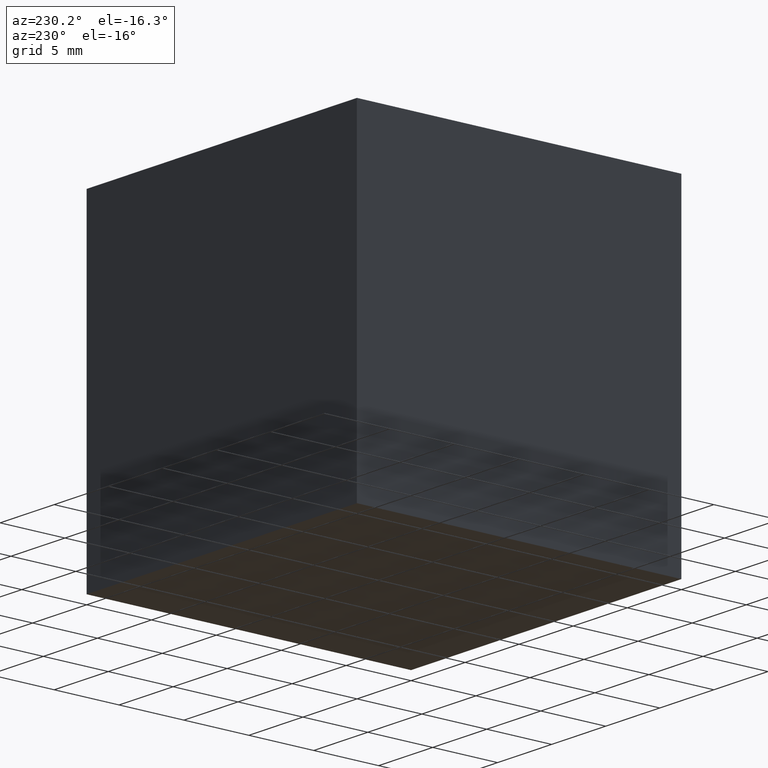
[diagram: clean part render]
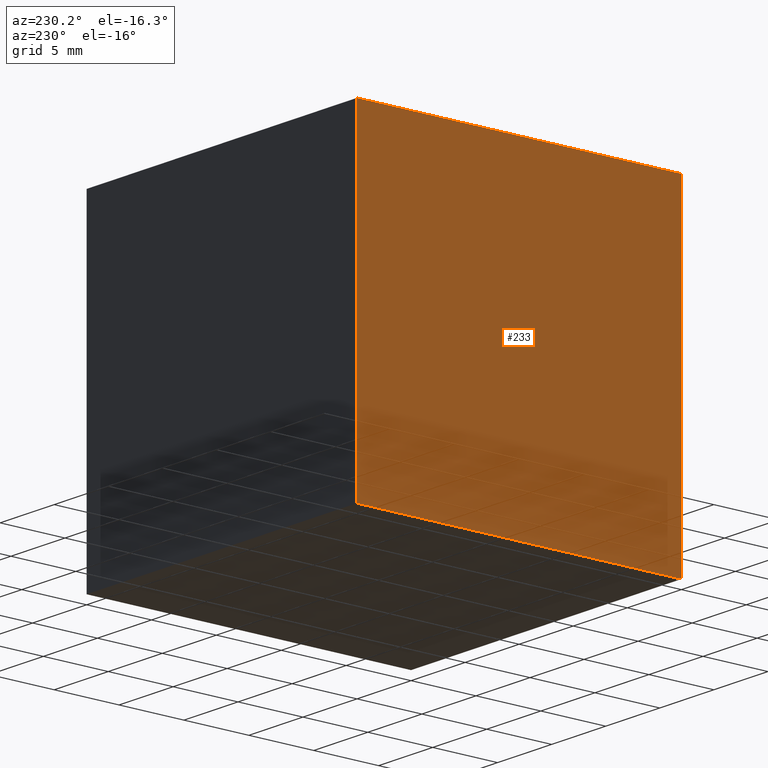
[diagram: same view with one face highlighted and labeled with its STEP entity id]
A machine part, auxiliary view. The second image highlights one B-rep face of the part: STEP entity #233.
In plain terms, the highlighted planar face has unit normal (-1, 0, 0).
Its self-contained STEP definition (entity closure, byte-faithful):
#2 = EDGE_CURVE ( 'NONE', #12, #44, #212, .T. ) ;
#6 = VECTOR ( 'NONE', #240, 1000.000000000000000 ) ;
#9 = EDGE_LOOP ( 'NONE', ( #11, #247, #297, #142 ) ) ;
#11 = ORIENTED_EDGE ( 'NONE', *, *, #92, .F. ) ;
#12 = VERTEX_POINT ( 'NONE', #295 ) ;
#14 = PLANE ( 'NONE',  #77 ) ;
#16 = DIRECTION ( 'NONE',  ( -1.000000000000000000, 0.0000000000000000000, 0.0000000000000000000 ) ) ;
#18 = DIRECTION ( 'NONE',  ( 0.0000000000000000000, 0.0000000000000000000, 1.000000000000000000 ) ) ;
#27 = CARTESIAN_POINT ( 'NONE',  ( -25.00000000000000000, -0.0000000000000000000, -25.00000000000000000 ) ) ;
#44 = VERTEX_POINT ( 'NONE', #256 ) ;
#48 = CARTESIAN_POINT ( 'NONE',  ( -25.00000000000000000, 25.00000000000000000, -25.00000000000000000 ) ) ;
#53 = VECTOR ( 'NONE', #81, 1000.000000000000000 ) ;
#77 = AXIS2_PLACEMENT_3D ( 'NONE', #286, #16, #18 ) ;
#81 = DIRECTION ( 'NONE',  ( -0.0000000000000000000, -0.0000000000000000000, -1.000000000000000000 ) ) ;
#92 = EDGE_CURVE ( 'NONE', #44, #267, #265, .T. ) ;
#97 = DIRECTION ( 'NONE',  ( -0.0000000000000000000, -0.0000000000000000000, -1.000000000000000000 ) ) ;
#111 = VECTOR ( 'NONE', #97, 1000.000000000000000 ) ;
#115 = CARTESIAN_POINT ( 'NONE',  ( -25.00000000000000000, -0.0000000000000000000, -25.00000000000000000 ) ) ;
#125 = CARTESIAN_POINT ( 'NONE',  ( -25.00000000000000000, 25.00000000000000000, 0.0000000000000000000 ) ) ;
#128 = LINE ( 'NONE', #48, #6 ) ;
#129 = LINE ( 'NONE', #156, #53 ) ;
#142 = ORIENTED_EDGE ( 'NONE', *, *, #299, .T. ) ;
#156 = CARTESIAN_POINT ( 'NONE',  ( -25.00000000000000000, 25.00000000000000000, -25.00000000000000000 ) ) ;
#200 = EDGE_CURVE ( 'NONE', #12, #246, #129, .T. ) ;
#207 = VECTOR ( 'NONE', #294, 1000.000000000000000 ) ;
#212 = LINE ( 'NONE', #125, #207 ) ;
#233 = ADVANCED_FACE ( 'NONE', ( #248 ), #14, .T. ) ;
#240 = DIRECTION ( 'NONE',  ( 0.0000000000000000000, -1.000000000000000000, 0.0000000000000000000 ) ) ;
#246 = VERTEX_POINT ( 'NONE', #296 ) ;
#247 = ORIENTED_EDGE ( 'NONE', *, *, #2, .F. ) ;
#248 = FACE_OUTER_BOUND ( 'NONE', #9, .T. ) ;
#256 = CARTESIAN_POINT ( 'NONE',  ( -25.00000000000000000, 0.0000000000000000000, 0.0000000000000000000 ) ) ;
#265 = LINE ( 'NONE', #115, #111 ) ;
#267 = VERTEX_POINT ( 'NONE', #27 ) ;
#286 = CARTESIAN_POINT ( 'NONE',  ( -25.00000000000000000, 25.00000000000000000, -25.00000000000000000 ) ) ;
#294 = DIRECTION ( 'NONE',  ( 0.0000000000000000000, -1.000000000000000000, 0.0000000000000000000 ) ) ;
#295 = CARTESIAN_POINT ( 'NONE',  ( -25.00000000000000000, 25.00000000000000000, 0.0000000000000000000 ) ) ;
#296 = CARTESIAN_POINT ( 'NONE',  ( -25.00000000000000000, 25.00000000000000000, -25.00000000000000000 ) ) ;
#297 = ORIENTED_EDGE ( 'NONE', *, *, #200, .T. ) ;
#299 = EDGE_CURVE ( 'NONE', #246, #267, #128, .T. ) ;